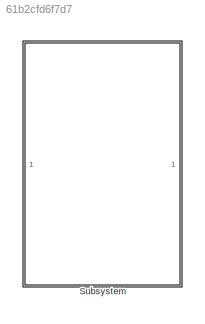
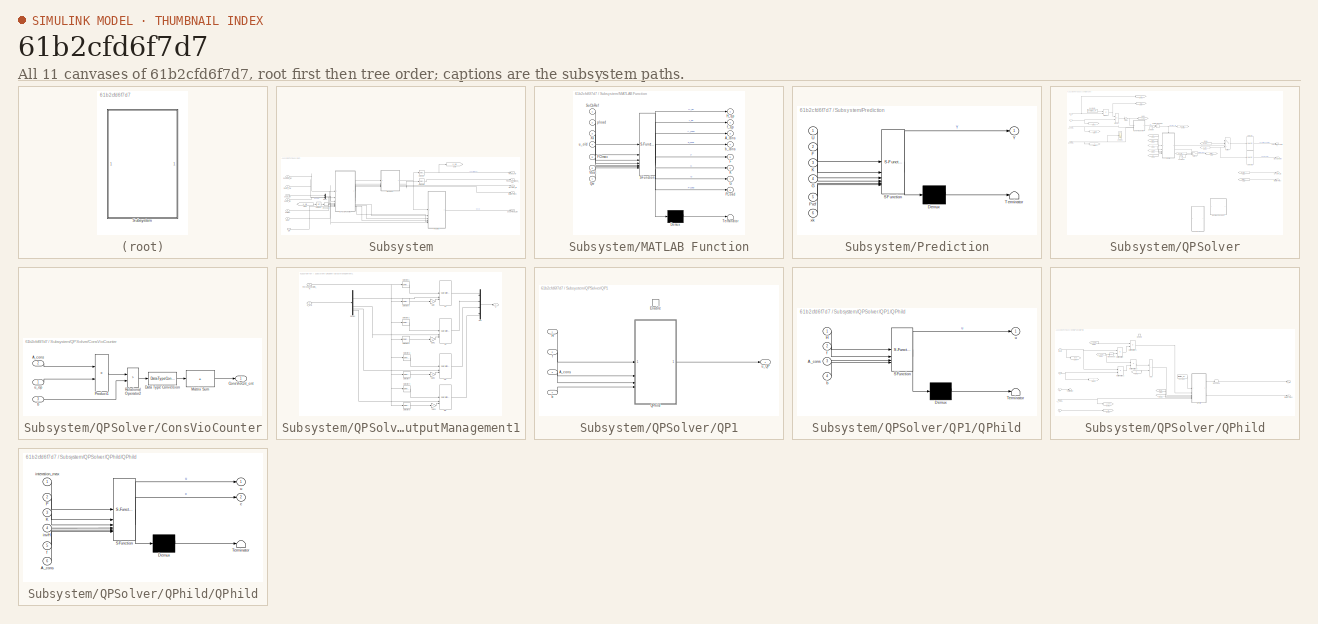
[diagram: thumbnail index - all 11 canvases of the model, root first then tree order]
MODEL slx_61b2cfd6f7d7
KIND library
CONFIG AbsTol = auto
CONFIG EnableMultiTasking = off
CONFIG FixedStep = auto
CONFIG MaxStep = auto
CONFIG MinStep = auto
CONFIG RelTol = 1e-3
CONFIG SampleTimeConstraint = Unconstrained
CONFIG SolverName = VariableStepAuto
CONFIG StartTime = 0.0
CONFIG StopTime = 10.0
BLOCK [SubSystem] Subsystem
BLOCK [Inport] Subsystem/FCImax
  Port = 5
BLOCK [From] Subsystem/From
  GotoTag = u_old
BLOCK [Goto] Subsystem/Goto
  GotoTag = u_old
BLOCK [Outport] Subsystem/IterationTimes
  Port = 4
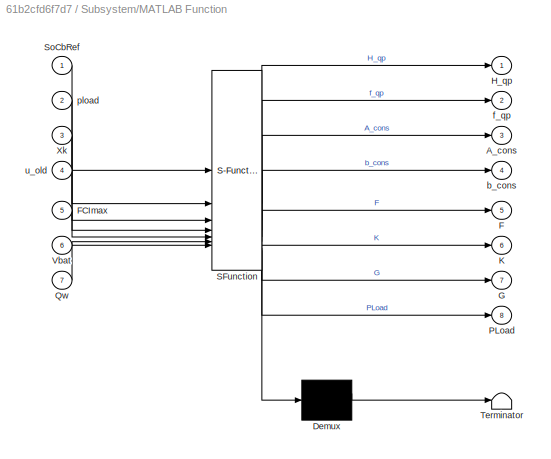
BLOCK [SubSystem] Subsystem/MATLAB Function
  ErrorFcn = Stateflow.Translate.translate
  LibrarySourceBlock = simulink/User-Defined\nFunctions/MATLAB Function
  PermitHierarchicalResolution = ExplicitOnly
  SFBlockType = MATLAB Function
  TreatAsAtomicUnit = on
BLOCK [Demux] Subsystem/MATLAB Function/ Demux 
  Outputs = 1
BLOCK [S-Function] Subsystem/MATLAB Function/ SFunction 
  EnableBusSupport = on
  FunctionName = sf_sfun
  PortCounts = [7 9]
  SFcnIsStateOwnerBlock = off
  SFunctionDeploymentMode = off
  Tag = Stateflow S-Function 13
BLOCK [Terminator] Subsystem/MATLAB Function/ Terminator 
BLOCK [Outport] Subsystem/MATLAB Function/A_cons
  Port = 3
BLOCK [Outport] Subsystem/MATLAB Function/F
  Port = 5
BLOCK [Inport] Subsystem/MATLAB Function/FCImax
  Port = 5
BLOCK [Outport] Subsystem/MATLAB Function/G
  Port = 7
BLOCK [Outport] Subsystem/MATLAB Function/H_qp
BLOCK [Outport] Subsystem/MATLAB Function/K
  Port = 6
BLOCK [Outport] Subsystem/MATLAB Function/PLoad
  Port = 8
BLOCK [Inport] Subsystem/MATLAB Function/Qw
  Port = 7
BLOCK [Inport] Subsystem/MATLAB Function/SoCbRef
BLOCK [Inport] Subsystem/MATLAB Function/Vbat
  Port = 6
BLOCK [Inport] Subsystem/MATLAB Function/Xk
  Port = 3
BLOCK [Outport] Subsystem/MATLAB Function/b_cons
  Port = 4
BLOCK [Outport] Subsystem/MATLAB Function/f_qp
  Port = 2
BLOCK [Inport] Subsystem/MATLAB Function/pload
  Port = 2
BLOCK [Inport] Subsystem/MATLAB Function/u_old
  Port = 4
BLOCK [Mux] Subsystem/Mux1
  DisplayOption = bar
  Inputs = 2
BLOCK [Outport] Subsystem/PfcNoConstrained_kW
  Port = 2
BLOCK [Outport] Subsystem/PfcNo_kW
BLOCK [Inport] Subsystem/Pload_kW
  Port = 2
BLOCK [SubSystem] Subsystem/Prediction
  ErrorFcn = Stateflow.Translate.translate
  LibrarySourceBlock = simulink/User-Defined\nFunctions/MATLAB Function
  PermitHierarchicalResolution = ExplicitOnly
  SFBlockType = MATLAB Function
  TreatAsAtomicUnit = on
BLOCK [Demux] Subsystem/Prediction/ Demux 
  Outputs = 1
BLOCK [S-Function] Subsystem/Prediction/ SFunction 
  EnableBusSupport = on
  FunctionName = sf_sfun
  PortCounts = [6 2]
  SFcnIsStateOwnerBlock = off
  SFunctionDeploymentMode = off
  Tag = Stateflow S-Function 17
BLOCK [Terminator] Subsystem/Prediction/ Terminator 
BLOCK [Inport] Subsystem/Prediction/F
  Port = 2
BLOCK [Inport] Subsystem/Prediction/G
  Port = 4
BLOCK [Inport] Subsystem/Prediction/K
  Port = 3
BLOCK [Inport] Subsystem/Prediction/Pref
  Port = 5
BLOCK [Inport] Subsystem/Prediction/U
BLOCK [Outport] Subsystem/Prediction/Y
BLOCK [Inport] Subsystem/Prediction/xk
  Port = 6
BLOCK [Outport] Subsystem/QPActive_flg
  Port = 3
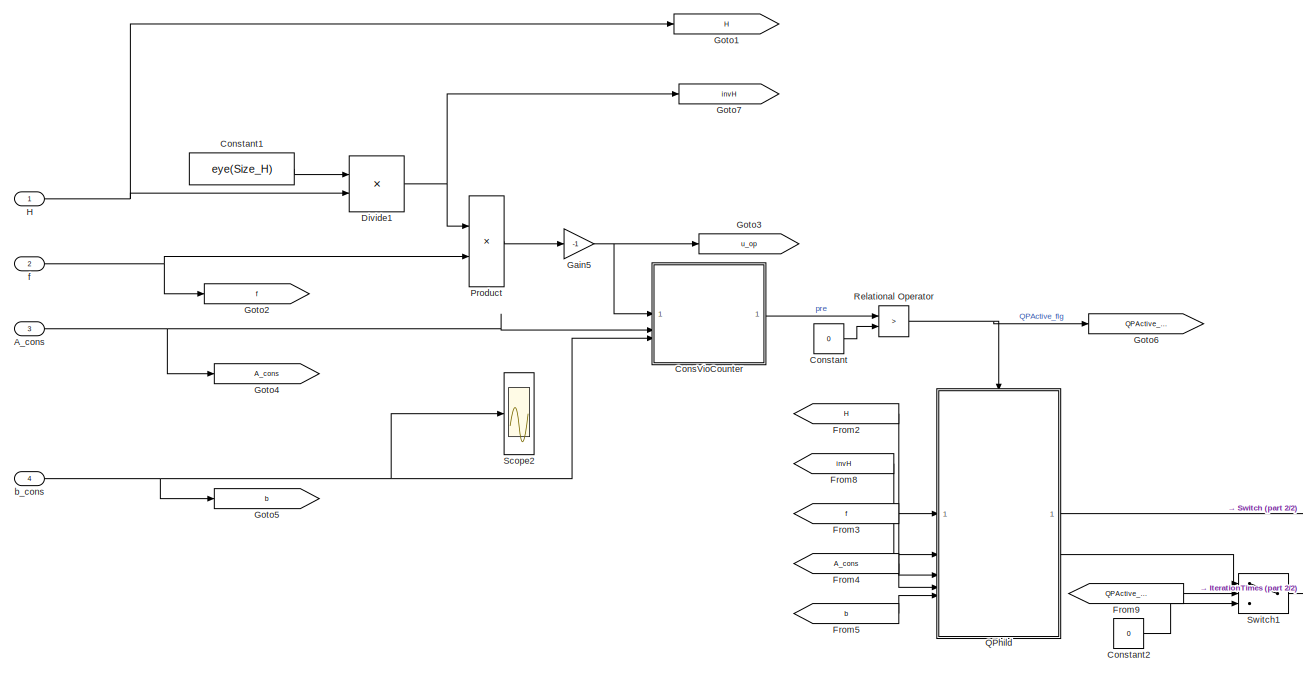
[diagram: Subsystem/QPSolver - part 1/2, top left region]
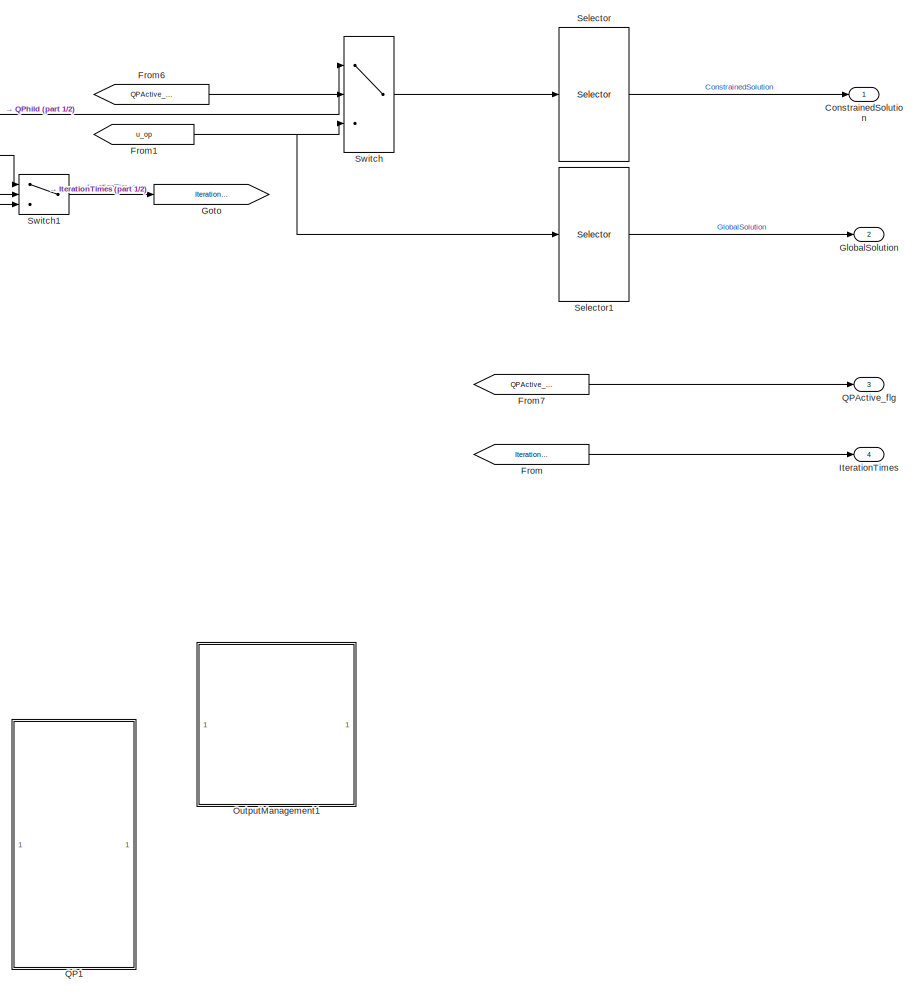
[diagram: Subsystem/QPSolver - part 2/2, middle right region]
BLOCK [SubSystem] Subsystem/QPSolver
BLOCK [Inport] Subsystem/QPSolver/A_cons
  Port = 3
BLOCK [SubSystem] Subsystem/QPSolver/ConsVioCounter
BLOCK [Inport] Subsystem/QPSolver/ConsVioCounter/A_cons
  Port = 2
BLOCK [Outport] Subsystem/QPSolver/ConsVioCounter/ConsVioCnt_cnt
BLOCK [DataTypeConversion] Subsystem/QPSolver/ConsVioCounter/Data Type Conversion
  OutDataTypeStr = uint8
  RndMeth = Floor
  SaturateOnIntegerOverflow = off
BLOCK [Sum] Subsystem/QPSolver/ConsVioCounter/Matrix Sum
  IconShape = rectangular
  Inputs = +
BLOCK [Product] Subsystem/QPSolver/ConsVioCounter/Product1
  Multiplication = Matrix(*)
BLOCK [RelationalOperator] Subsystem/QPSolver/ConsVioCounter/Relational Operator2
  InputSameDT = off
  Operator = >
  OutDataTypeStr = boolean
  RndMeth = Simplest
BLOCK [Inport] Subsystem/QPSolver/ConsVioCounter/b
  Port = 3
BLOCK [Inport] Subsystem/QPSolver/ConsVioCounter/u_op
BLOCK [Constant] Subsystem/QPSolver/Constant
  Value = 0
BLOCK [Constant] Subsystem/QPSolver/Constant1
  Value = eye(Size_H)
BLOCK [Constant] Subsystem/QPSolver/Constant2
  Value = 0
BLOCK [Outport] Subsystem/QPSolver/ConstrainedSolution
BLOCK [Product] Subsystem/QPSolver/Divide1
  Inputs = */
  Multiplication = Matrix(*)
BLOCK [From] Subsystem/QPSolver/From
  GotoTag = IterationTimes
BLOCK [From] Subsystem/QPSolver/From1
  GotoTag = u_op
BLOCK [From] Subsystem/QPSolver/From2
  GotoTag = H
BLOCK [From] Subsystem/QPSolver/From3
  GotoTag = f
BLOCK [From] Subsystem/QPSolver/From4
  GotoTag = A_cons
BLOCK [From] Subsystem/QPSolver/From5
  GotoTag = b
BLOCK [From] Subsystem/QPSolver/From6
  GotoTag = QPActive_flg
BLOCK [From] Subsystem/QPSolver/From7
  GotoTag = QPActive_flg
BLOCK [From] Subsystem/QPSolver/From8
  GotoTag = invH
BLOCK [From] Subsystem/QPSolver/From9
  GotoTag = QPActive_flg
BLOCK [Gain] Subsystem/QPSolver/Gain5
  Gain = -1
BLOCK [Outport] Subsystem/QPSolver/GlobalSolution
  Port = 2
BLOCK [Goto] Subsystem/QPSolver/Goto
  GotoTag = IterationTimes
BLOCK [Goto] Subsystem/QPSolver/Goto1
  GotoTag = H
BLOCK [Goto] Subsystem/QPSolver/Goto2
  GotoTag = f
BLOCK [Goto] Subsystem/QPSolver/Goto3
  GotoTag = u_op
BLOCK [Goto] Subsystem/QPSolver/Goto4
  GotoTag = A_cons
BLOCK [Goto] Subsystem/QPSolver/Goto5
  GotoTag = b
BLOCK [Goto] Subsystem/QPSolver/Goto6
  GotoTag = QPActive_flg
BLOCK [Goto] Subsystem/QPSolver/Goto7
  GotoTag = invH
BLOCK [Inport] Subsystem/QPSolver/H
BLOCK [Outport] Subsystem/QPSolver/IterationTimes
  Port = 4
BLOCK [SubSystem] Subsystem/QPSolver/OutputManagement1
  Commented = on
BLOCK [Demux] Subsystem/QPSolver/OutputManagement1/Demux
BLOCK [Reference] Subsystem/QPSolver/OutputManagement1/FL  REF=simulink/Discontinuities/Saturation
Dynamic
  SourceBlock = simulink/Discontinuities/Saturation\nDynamic
  SourceType = Saturation Dynamic
BLOCK [Reference] Subsystem/QPSolver/OutputManagement1/FR  REF=simulink/Discontinuities/Saturation
Dynamic
  SourceBlock = simulink/Discontinuities/Saturation\nDynamic
  SourceType = Saturation Dynamic
BLOCK [Inport] Subsystem/QPSolver/OutputManagement1/ForceConstraints_N
BLOCK [Gain] Subsystem/QPSolver/OutputManagement1/Gain
  Gain = -1
BLOCK [Gain] Subsystem/QPSolver/OutputManagement1/Gain1
  Gain = -1
BLOCK [Gain] Subsystem/QPSolver/OutputManagement1/Gain2
  Gain = -1
BLOCK [Gain] Subsystem/QPSolver/OutputManagement1/Gain3
  Gain = -1
BLOCK [Mux] Subsystem/QPSolver/OutputManagement1/Mux
  DisplayOption = bar
  Inputs = [1 1 1 1]
BLOCK [Reference] Subsystem/QPSolver/OutputManagement1/RL  REF=simulink/Discontinuities/Saturation
Dynamic
  SourceBlock = simulink/Discontinuities/Saturation\nDynamic
  SourceType = Saturation Dynamic
BLOCK [Reference] Subsystem/QPSolver/OutputManagement1/RR  REF=simulink/Discontinuities/Saturation
Dynamic
  SourceBlock = simulink/Discontinuities/Saturation\nDynamic
  SourceType = Saturation Dynamic
BLOCK [Selector] Subsystem/QPSolver/OutputManagement1/Selector1
  IndexOptions = Index vector (dialog)
  Indices = [5]
  InputPortWidth = 8
  OutputSizes = 1
BLOCK [Selector] Subsystem/QPSolver/OutputManagement1/Selector2
  IndexOptions = Index vector (dialog)
  Indices = 6
  InputPortWidth = 8
  OutputSizes = 1
BLOCK [Selector] Subsystem/QPSolver/OutputManagement1/Selector3
  IndexOptions = Index vector (dialog)
  Indices = 7
  InputPortWidth = 8
  OutputSizes = 1
BLOCK [Selector] Subsystem/QPSolver/OutputManagement1/Selector4
  IndexOptions = Index vector (dialog)
  Indices = 8
  InputPortWidth = 8
  OutputSizes = 1
BLOCK [Selector] Subsystem/QPSolver/OutputManagement1/Selector5
  IndexOptions = Index vector (dialog)
  Indices = 1
  InputPortWidth = 8
  OutputSizes = 1
BLOCK [Selector] Subsystem/QPSolver/OutputManagement1/Selector6
  IndexOptions = Index vector (dialog)
  Indices = 2
  InputPortWidth = 8
  OutputSizes = 1
BLOCK [Selector] Subsystem/QPSolver/OutputManagement1/Selector7
  IndexOptions = Index vector (dialog)
  Indices = 3
  InputPortWidth = 8
  OutputSizes = 1
BLOCK [Selector] Subsystem/QPSolver/OutputManagement1/Selector8
  IndexOptions = Index vector (dialog)
  Indices = 4
  InputPortWidth = 8
  OutputSizes = 1
BLOCK [Outport] Subsystem/QPSolver/OutputManagement1/u
BLOCK [Inport] Subsystem/QPSolver/OutputManagement1/u_pre
  Port = 2
BLOCK [Product] Subsystem/QPSolver/Product
  Multiplication = Matrix(*)
BLOCK [SubSystem] Subsystem/QPSolver/QP1
  Commented = on
BLOCK [Inport] Subsystem/QPSolver/QP1/A_cons
  Port = 3
BLOCK [EnablePort] Subsystem/QPSolver/QP1/Enable
BLOCK [Inport] Subsystem/QPSolver/QP1/H
BLOCK [SubSystem] Subsystem/QPSolver/QP1/QPhild
  ErrorFcn = Stateflow.Translate.translate
  PermitHierarchicalResolution = ExplicitOnly
  SFBlockType = MATLAB Function
  TreatAsAtomicUnit = on
BLOCK [Demux] Subsystem/QPSolver/QP1/QPhild/ Demux 
  Outputs = 1
BLOCK [S-Function] Subsystem/QPSolver/QP1/QPhild/ SFunction 
  EnableBusSupport = on
  FunctionName = sf_sfun
  PortCounts = [4 2]
  SFcnIsStateOwnerBlock = off
  SFunctionDeploymentMode = off
  Tag = Stateflow S-Function 14
BLOCK [Terminator] Subsystem/QPSolver/QP1/QPhild/ Terminator 
BLOCK [Inport] Subsystem/QPSolver/QP1/QPhild/A_cons
  Port = 3
BLOCK [Inport] Subsystem/QPSolver/QP1/QPhild/H
BLOCK [Inport] Subsystem/QPSolver/QP1/QPhild/b
  Port = 4
BLOCK [Inport] Subsystem/QPSolver/QP1/QPhild/f
  Port = 2
BLOCK [Outport] Subsystem/QPSolver/QP1/QPhild/u
BLOCK [Inport] Subsystem/QPSolver/QP1/b
  Port = 4
BLOCK [Inport] Subsystem/QPSolver/QP1/f
  Port = 2
BLOCK [Outport] Subsystem/QPSolver/QP1/u_QP
BLOCK [Outport] Subsystem/QPSolver/QPActive_flg
  Port = 3
BLOCK [SubSystem] Subsystem/QPSolver/QPhild
BLOCK [Inport] Subsystem/QPSolver/QPhild/A_cons
  Port = 4
BLOCK [Sum] Subsystem/QPSolver/QPhild/Add
  IconShape = rectangular
BLOCK [Constant] Subsystem/QPSolver/QPhild/Constant
  Value = iteration_max
BLOCK [EnablePort] Subsystem/QPSolver/QPhild/Enable
BLOCK [From] Subsystem/QPSolver/QPhild/From
  GotoTag = invH
BLOCK [From] Subsystem/QPSolver/QPhild/From1
  GotoTag = A_cons
BLOCK [From] Subsystem/QPSolver/QPhild/From2
  GotoTag = A_cons
BLOCK [From] Subsystem/QPSolver/QPhild/From3
  GotoTag = f
BLOCK [From] Subsystem/QPSolver/QPhild/From6
  GotoTag = b
BLOCK [Goto] Subsystem/QPSolver/QPhild/Goto1
  GotoTag = f
BLOCK [Goto] Subsystem/QPSolver/QPhild/Goto2
  GotoTag = A_cons
BLOCK [Goto] Subsystem/QPSolver/QPhild/Goto3
  GotoTag = b
BLOCK [Goto] Subsystem/QPSolver/QPhild/Goto4
  GotoTag = invH
BLOCK [Inport] Subsystem/QPSolver/QPhild/H
  PortDimensions = [Size_H,Size_H]
BLOCK [Outport] Subsystem/QPSolver/QPhild/IterationTimes
  Port = 2
  PortDimensions = [1,1]
BLOCK [Product] Subsystem/QPSolver/QPhild/Matrix Multiply
  Multiplication = Matrix(*)
BLOCK [Product] Subsystem/QPSolver/QPhild/Matrix Multiply1
  Multiplication = Matrix(*)
BLOCK [Product] Subsystem/QPSolver/QPhild/Matrix Multiply2
  Multiplication = Matrix(*)
BLOCK [Product] Subsystem/QPSolver/QPhild/Matrix Multiply3
  Multiplication = Matrix(*)
BLOCK [SubSystem] Subsystem/QPSolver/QPhild/QPhild
  ErrorFcn = Stateflow.Translate.translate
  PermitHierarchicalResolution = ExplicitOnly
  SFBlockType = MATLAB Function
  TreatAsAtomicUnit = on
BLOCK [Demux] Subsystem/QPSolver/QPhild/QPhild/ Demux 
  Outputs = 1
BLOCK [S-Function] Subsystem/QPSolver/QPhild/QPhild/ SFunction 
  EnableBusSupport = on
  FunctionName = sf_sfun
  PortCounts = [6 3]
  SFcnIsStateOwnerBlock = off
  SFunctionDeploymentMode = off
  Tag = Stateflow S-Function 15
BLOCK [Terminator] Subsystem/QPSolver/QPhild/QPhild/ Terminator 
BLOCK [Inport] Subsystem/QPSolver/QPhild/QPhild/A_cons
  Port = 6
BLOCK [Inport] Subsystem/QPSolver/QPhild/QPhild/K
  Port = 3
BLOCK [Inport] Subsystem/QPSolver/QPhild/QPhild/P
  Port = 2
BLOCK [Outport] Subsystem/QPSolver/QPhild/QPhild/c
  Port = 2
BLOCK [Inport] Subsystem/QPSolver/QPhild/QPhild/f
  Port = 5
BLOCK [Inport] Subsystem/QPSolver/QPhild/QPhild/interation_max
BLOCK [Inport] Subsystem/QPSolver/QPhild/QPhild/invH
  Port = 4
BLOCK [Outport] Subsystem/QPSolver/QPhild/QPhild/u
BLOCK [Reshape] Subsystem/QPSolver/QPhild/Reshape
  OutputDimensionality = Column vector (2-D)
BLOCK [Terminator] Subsystem/QPSolver/QPhild/Terminator
BLOCK [Math] Subsystem/QPSolver/QPhild/Transpose
  Operator = transpose
  SignedPower = on
BLOCK [Inport] Subsystem/QPSolver/QPhild/b
  Port = 5
BLOCK [Inport] Subsystem/QPSolver/QPhild/f
  Port = 3
  PortDimensions = [Size_H,1]
BLOCK [Inport] Subsystem/QPSolver/QPhild/invH
  Port = 2
  PortDimensions = [Size_H,Size_H]
BLOCK [Outport] Subsystem/QPSolver/QPhild/u_QP
  PortDimensions = [Size_H,1]
BLOCK [RelationalOperator] Subsystem/QPSolver/Relational Operator
  InputSameDT = off
  Operator = >
  OutDataTypeStr = boolean
  RndMeth = Simplest
BLOCK [Scope] Subsystem/QPSolver/Scope2
  Floating = off
  NumInputPorts = 1
  ScopeSpecificationString = Simulink.scopes.TimeScopeBlockCfg('CurrentConfiguration', extmgr.ConfigurationSet(extmgr.Configuration('Core','General UI',true),extmgr.Configuration('Core','Source UI',true),extmgr.Configuration('Sources','WiredSimulink',true,'DataLoggingVariableName','ScopeData10'),extmgr.Configuration('Visuals','Time Domain',true,'SerializedDisplays',{struct('MinYLimReal','140.00000','MaxYLimReal','340.00000','...<+1617ch>
BLOCK [Selector] Subsystem/QPSolver/Selector
  IndexOptions = Index vector (dialog)
  Indices = [1:N_u]
  OutputSizes = 1
BLOCK [Selector] Subsystem/QPSolver/Selector1
  IndexOptions = Index vector (dialog)
  Indices = [1:N_u]
  OutputSizes = 1
BLOCK [Switch] Subsystem/QPSolver/Switch
  Criteria = u2 ~= 0
  InputSameDT = off
  SaturateOnIntegerOverflow = off
BLOCK [Switch] Subsystem/QPSolver/Switch1
  Criteria = u2 ~= 0
  InputSameDT = off
  SaturateOnIntegerOverflow = off
BLOCK [Inport] Subsystem/QPSolver/b_cons
  Port = 4
BLOCK [Inport] Subsystem/QPSolver/f
  Port = 2
BLOCK [Inport] Subsystem/Qw
  Port = 7
BLOCK [Reshape] Subsystem/Reshape
  OutputDimensionality = Column vector (2-D)
BLOCK [Selector] Subsystem/Selector
  IndexOptions = Index vector (dialog)
  Indices = 1
  OutputSizes = 1
BLOCK [Selector] Subsystem/Selector1
  IndexOptions = Index vector (dialog)
  Indices = 1
  OutputSizes = 1
BLOCK [Outport] Subsystem/SoCbPredict_rat
  Port = 5
BLOCK [Inport] Subsystem/SoCbRef_rat
BLOCK [Inport] Subsystem/SoCb_rat
  Port = 3
BLOCK [Inport] Subsystem/SoCfc_rat
  Port = 4
BLOCK [UnitDelay] Subsystem/Unit Delay
  HasFrameUpgradeWarning = on
  SampleTime = -1
BLOCK [Inport] Subsystem/Vbat
  Port = 6
LINE Subsystem/FCImax:1 -> Subsystem/MATLAB Function:5
LINE Subsystem/From:1 -> Subsystem/Unit Delay:1
LINE Subsystem/MATLAB Function:1 -> Subsystem/QPSolver:1
LINE Subsystem/MATLAB Function:2 -> Subsystem/QPSolver:2
LINE Subsystem/MATLAB Function:3 -> Subsystem/QPSolver:3
LINE Subsystem/MATLAB Function:4 -> Subsystem/QPSolver:4
LINE Subsystem/MATLAB Function:5 -> Subsystem/Prediction:2
LINE Subsystem/MATLAB Function:6 -> Subsystem/Prediction:3
LINE Subsystem/MATLAB Function:7 -> Subsystem/Prediction:4
LINE Subsystem/MATLAB Function:8 -> Subsystem/Prediction:5
NET Subsystem/Mux1:1 -> Subsystem/MATLAB Function:3, Subsystem/Prediction:6
LINE Subsystem/Pload_kW:1 -> Subsystem/MATLAB Function:2
LINE Subsystem/Prediction:1 -> Subsystem/SoCbPredict_rat:1
NET Subsystem/QPSolver/A_cons:1 -> Subsystem/QPSolver/ConsVioCounter:2, Subsystem/QPSolver/Goto4:1
LINE Subsystem/QPSolver/ConsVioCounter/A_cons:1 -> Subsystem/QPSolver/ConsVioCounter/Product1:1
LINE Subsystem/QPSolver/ConsVioCounter/Data Type Conversion:1 -> Subsystem/QPSolver/ConsVioCounter/Matrix Sum:1
LINE Subsystem/QPSolver/ConsVioCounter/Matrix Sum:1 -> Subsystem/QPSolver/ConsVioCounter/ConsVioCnt_cnt:1
LINE Subsystem/QPSolver/ConsVioCounter/Product1:1 -> Subsystem/QPSolver/ConsVioCounter/Relational Operator2:1
LINE Subsystem/QPSolver/ConsVioCounter/Relational Operator2:1 -> Subsystem/QPSolver/ConsVioCounter/Data Type Conversion:1
LINE Subsystem/QPSolver/ConsVioCounter/b:1 -> Subsystem/QPSolver/ConsVioCounter/Relational Operator2:2
LINE Subsystem/QPSolver/ConsVioCounter/u_op:1 -> Subsystem/QPSolver/ConsVioCounter/Product1:2
LINE Subsystem/QPSolver/ConsVioCounter:1 -> Subsystem/QPSolver/Relational Operator:1
LINE Subsystem/QPSolver/Constant1:1 -> Subsystem/QPSolver/Divide1:1
LINE Subsystem/QPSolver/Constant2:1 -> Subsystem/QPSolver/Switch1:3
LINE Subsystem/QPSolver/Constant:1 -> Subsystem/QPSolver/Relational Operator:2
NET Subsystem/QPSolver/Divide1:1 -> Subsystem/QPSolver/Goto7:1, Subsystem/QPSolver/Product:1
NET Subsystem/QPSolver/From1:1 -> Subsystem/QPSolver/Selector1:1, Subsystem/QPSolver/Switch:3
LINE Subsystem/QPSolver/From2:1 -> Subsystem/QPSolver/QPhild:1
LINE Subsystem/QPSolver/From3:1 -> Subsystem/QPSolver/QPhild:3
LINE Subsystem/QPSolver/From4:1 -> Subsystem/QPSolver/QPhild:4
LINE Subsystem/QPSolver/From5:1 -> Subsystem/QPSolver/QPhild:5
LINE Subsystem/QPSolver/From6:1 -> Subsystem/QPSolver/Switch:2
LINE Subsystem/QPSolver/From7:1 -> Subsystem/QPSolver/QPActive_flg:1
LINE Subsystem/QPSolver/From8:1 -> Subsystem/QPSolver/QPhild:2
LINE Subsystem/QPSolver/From9:1 -> Subsystem/QPSolver/Switch1:2
LINE Subsystem/QPSolver/From:1 -> Subsystem/QPSolver/IterationTimes:1
NET Subsystem/QPSolver/Gain5:1 -> Subsystem/QPSolver/ConsVioCounter:1, Subsystem/QPSolver/Goto3:1
NET Subsystem/QPSolver/H:1 -> Subsystem/QPSolver/Divide1:2, Subsystem/QPSolver/Goto1:1
LINE Subsystem/QPSolver/OutputManagement1/Demux:1 -> Subsystem/QPSolver/OutputManagement1/FL:2
LINE Subsystem/QPSolver/OutputManagement1/Demux:2 -> Subsystem/QPSolver/OutputManagement1/RL:2
LINE Subsystem/QPSolver/OutputManagement1/Demux:3 -> Subsystem/QPSolver/OutputManagement1/FR:2
LINE Subsystem/QPSolver/OutputManagement1/Demux:4 -> Subsystem/QPSolver/OutputManagement1/RR:2
LINE Subsystem/QPSolver/OutputManagement1/FL:1 -> Subsystem/QPSolver/OutputManagement1/Mux:1
LINE Subsystem/QPSolver/OutputManagement1/FR:1 -> Subsystem/QPSolver/OutputManagement1/Mux:3
NET Subsystem/QPSolver/OutputManagement1/ForceConstraints_N:1 -> Subsystem/QPSolver/OutputManagement1/Selector1:1, Subsystem/QPSolver/OutputManagement1/Selector2:1, Subsystem/QPSolver/OutputManagement1/Selector3:1, Subsystem/QPSolver/OutputManagement1/Selector4:1, Subsystem/QPSolver/OutputManagement1/Selector5:1, Subsystem/QPSolver/OutputManagement1/Selector6:1, Subsystem/QPSolver/OutputManagement1/Selector7:1, Subsystem/QPSolver/OutputManagement1/Selector8:1
LINE Subsystem/QPSolver/OutputManagement1/Gain1:1 -> Subsystem/QPSolver/OutputManagement1/RL:3
LINE Subsystem/QPSolver/OutputManagement1/Gain2:1 -> Subsystem/QPSolver/OutputManagement1/FR:3
LINE Subsystem/QPSolver/OutputManagement1/Gain3:1 -> Subsystem/QPSolver/OutputManagement1/RR:3
LINE Subsystem/QPSolver/OutputManagement1/Gain:1 -> Subsystem/QPSolver/OutputManagement1/FL:3
LINE Subsystem/QPSolver/OutputManagement1/Mux:1 -> Subsystem/QPSolver/OutputManagement1/u:1
LINE Subsystem/QPSolver/OutputManagement1/RL:1 -> Subsystem/QPSolver/OutputManagement1/Mux:2
LINE Subsystem/QPSolver/OutputManagement1/RR:1 -> Subsystem/QPSolver/OutputManagement1/Mux:4
LINE Subsystem/QPSolver/OutputManagement1/Selector1:1 -> Subsystem/QPSolver/OutputManagement1/FL:1
LINE Subsystem/QPSolver/OutputManagement1/Selector2:1 -> Subsystem/QPSolver/OutputManagement1/RL:1
LINE Subsystem/QPSolver/OutputManagement1/Selector3:1 -> Subsystem/QPSolver/OutputManagement1/FR:1
LINE Subsystem/QPSolver/OutputManagement1/Selector4:1 -> Subsystem/QPSolver/OutputManagement1/RR:1
LINE Subsystem/QPSolver/OutputManagement1/Selector5:1 -> Subsystem/QPSolver/OutputManagement1/Gain:1
LINE Subsystem/QPSolver/OutputManagement1/Selector6:1 -> Subsystem/QPSolver/OutputManagement1/Gain1:1
LINE Subsystem/QPSolver/OutputManagement1/Selector7:1 -> Subsystem/QPSolver/OutputManagement1/Gain2:1
LINE Subsystem/QPSolver/OutputManagement1/Selector8:1 -> Subsystem/QPSolver/OutputManagement1/Gain3:1
LINE Subsystem/QPSolver/OutputManagement1/u_pre:1 -> Subsystem/QPSolver/OutputManagement1/Demux:1
LINE Subsystem/QPSolver/Product:1 -> Subsystem/QPSolver/Gain5:1
LINE Subsystem/QPSolver/QP1/A_cons:1 -> Subsystem/QPSolver/QP1/QPhild:3
LINE Subsystem/QPSolver/QP1/H:1 -> Subsystem/QPSolver/QP1/QPhild:1
LINE Subsystem/QPSolver/QP1/QPhild:1 -> Subsystem/QPSolver/QP1/u_QP:1
LINE Subsystem/QPSolver/QP1/b:1 -> Subsystem/QPSolver/QP1/QPhild:4
LINE Subsystem/QPSolver/QP1/f:1 -> Subsystem/QPSolver/QP1/QPhild:2
NET Subsystem/QPSolver/QPhild/A_cons:1 -> Subsystem/QPSolver/QPhild/Goto2:1, Subsystem/QPSolver/QPhild/QPhild:6
LINE Subsystem/QPSolver/QPhild/Add:1 -> Subsystem/QPSolver/QPhild/QPhild:3
LINE Subsystem/QPSolver/QPhild/Constant:1 -> Subsystem/QPSolver/QPhild/QPhild:1
NET Subsystem/QPSolver/QPhild/From1:1 -> Subsystem/QPSolver/QPhild/Matrix Multiply3:1, Subsystem/QPSolver/QPhild/Transpose:1
LINE Subsystem/QPSolver/QPhild/From2:1 -> Subsystem/QPSolver/QPhild/Matrix Multiply1:1
LINE Subsystem/QPSolver/QPhild/From3:1 -> Subsystem/QPSolver/QPhild/QPhild:5
LINE Subsystem/QPSolver/QPhild/From6:1 -> Subsystem/QPSolver/QPhild/Add:2
LINE Subsystem/QPSolver/QPhild/From:1 -> Subsystem/QPSolver/QPhild/QPhild:4
LINE Subsystem/QPSolver/QPhild/H:1 -> Subsystem/QPSolver/QPhild/Terminator:1
LINE Subsystem/QPSolver/QPhild/Matrix Multiply1:1 -> Subsystem/QPSolver/QPhild/QPhild:2
LINE Subsystem/QPSolver/QPhild/Matrix Multiply2:1 -> Subsystem/QPSolver/QPhild/Matrix Multiply3:2
LINE Subsystem/QPSolver/QPhild/Matrix Multiply3:1 -> Subsystem/QPSolver/QPhild/Add:1
LINE Subsystem/QPSolver/QPhild/Matrix Multiply:1 -> Subsystem/QPSolver/QPhild/Matrix Multiply1:2
LINE Subsystem/QPSolver/QPhild/QPhild:1 -> Subsystem/QPSolver/QPhild/Reshape:1
LINE Subsystem/QPSolver/QPhild/QPhild:2 -> Subsystem/QPSolver/QPhild/IterationTimes:1
LINE Subsystem/QPSolver/QPhild/Reshape:1 -> Subsystem/QPSolver/QPhild/u_QP:1
LINE Subsystem/QPSolver/QPhild/Transpose:1 -> Subsystem/QPSolver/QPhild/Matrix Multiply:2
LINE Subsystem/QPSolver/QPhild/b:1 -> Subsystem/QPSolver/QPhild/Goto3:1
NET Subsystem/QPSolver/QPhild/f:1 -> Subsystem/QPSolver/QPhild/Goto1:1, Subsystem/QPSolver/QPhild/Matrix Multiply2:2
NET Subsystem/QPSolver/QPhild/invH:1 -> Subsystem/QPSolver/QPhild/Goto4:1, Subsystem/QPSolver/QPhild/Matrix Multiply2:1, Subsystem/QPSolver/QPhild/Matrix Multiply:1
LINE Subsystem/QPSolver/QPhild:1 -> Subsystem/QPSolver/Switch:1
LINE Subsystem/QPSolver/QPhild:2 -> Subsystem/QPSolver/Switch1:1
NET Subsystem/QPSolver/Relational Operator:1 -> Subsystem/QPSolver/Goto6:1, Subsystem/QPSolver/QPhild:enable
LINE Subsystem/QPSolver/Selector1:1 -> Subsystem/QPSolver/GlobalSolution:1
LINE Subsystem/QPSolver/Selector:1 -> Subsystem/QPSolver/ConstrainedSolution:1
LINE Subsystem/QPSolver/Switch1:1 -> Subsystem/QPSolver/Goto:1
LINE Subsystem/QPSolver/Switch:1 -> Subsystem/QPSolver/Selector:1
NET Subsystem/QPSolver/b_cons:1 -> Subsystem/QPSolver/ConsVioCounter:3, Subsystem/QPSolver/Goto5:1, Subsystem/QPSolver/Scope2:1
NET Subsystem/QPSolver/f:1 -> Subsystem/QPSolver/Goto2:1, Subsystem/QPSolver/Product:2
NET Subsystem/QPSolver:1 -> Subsystem/Prediction:1, Subsystem/Selector:1
LINE Subsystem/QPSolver:2 -> Subsystem/Selector1:1
LINE Subsystem/QPSolver:3 -> Subsystem/QPActive_flg:1
LINE Subsystem/QPSolver:4 -> Subsystem/IterationTimes:1
LINE Subsystem/Qw:1 -> Subsystem/MATLAB Function:7
LINE Subsystem/Reshape:1 -> Subsystem/MATLAB Function:4
LINE Subsystem/Selector1:1 -> Subsystem/PfcNoConstrained_kW:1
NET Subsystem/Selector:1 -> Subsystem/Goto:1, Subsystem/PfcNo_kW:1
LINE Subsystem/SoCbRef_rat:1 -> Subsystem/MATLAB Function:1
LINE Subsystem/SoCb_rat:1 -> Subsystem/Mux1:1
LINE Subsystem/SoCfc_rat:1 -> Subsystem/Mux1:2
LINE Subsystem/Unit Delay:1 -> Subsystem/Reshape:1
LINE Subsystem/Vbat:1 -> Subsystem/MATLAB Function:6
note: NET lines group one-source signal fan-out (src -> all destinations, sorted); 1:1 wires keep LINE
CHART Subsystem/MATLAB Function states=1 transitions=1
  STATE_LABEL 'eML_blk_kernel()'
  STATE_LABEL 'SCRIPT:\nfunction [H_qp,f_qp,A_cons,b_cons,F,K,G,PLoad] = fcn(SoCbRef,pload,Xk,u_old,FCImax,Vbat,Qw)\n\n%% Initialzization\n\n% xk: SoC當下\n% pload: demand power\n% SoCbRef: 電池目標Soc\n\n\n% vehicle parameters\n\nC_b = 20; % 額定電池容量kwh\nC_FC = 20; % 額定燃料電池容量kwh\n\n% Prediction horizon /Control horizon/ Sample time\nNp = 7;\nNc = 3;\nTs = 0.01;\n\n% discretization\nAd = eye(2);\nBd = [-Ts/C_b/3600;\n    Ts/C_FC/3600];\nDd=[Ts...<+2287ch>'
CHART Subsystem/QPSolver/QP1/QPhild states=1 transitions=1
  STATE_LABEL 'eML_blk_kernel()'
  STATE_LABEL "SCRIPT:\nfunction u  = QPhild(H,f,A_cons,b)\n\n%% Procedure start\nP=A_cons*(H\\A_cons');\nK=(A_cons*(H\\f)+b);\n\n[n,m]=size(K);  % n is the number of the constraints.\nx_ini=zeros(n,m);\nlambda=x_ini;\nal=10;\ninteration_max = 10;\n\nfor km=1:interation_max\n%     find the elements in the solution vector one by one\n%     km could be larger if the Lagranger multiplier has a slow\n%     convergence rate.\n    \n    ...<+278ch>"
CHART Subsystem/QPSolver/QPhild/QPhild states=1 transitions=1
  STATE_LABEL 'eML_blk_kernel()'
  STATE_LABEL 'SCRIPT:\n    function [u,c]  = QPhild(interation_max,P,K,invH,f,A_cons)\n%% Procedure start\n[n,m]=size(K);  % n is the number of the constraints.\nx_ini=zeros(n,m);\nlambda=x_ini;\nal=10;\nc=0;\nfor km=1:interation_max\n    c=c+1;\n%     find the elements in the solution vector one by one\n%     km could be larger if the Lagranger multiplier has a slow\n%     convergence rate.\n    \n    lambda_p=lambda;\n    \n...<+259ch>'
CHART Subsystem/Prediction states=1 transitions=1
  STATE_LABEL 'eML_blk_kernel()'
  STATE_LABEL 'SCRIPT:\nfunction Y = fcn(U,F,K,G,Pref,xk)\n\n\n\nY=F*xk+K*U+G*Pref;\n\n'
CHART  states=0 transitions=0
CHART  states=0 transitions=0
CHART  states=0 transitions=0
CHART  states=0 transitions=0
